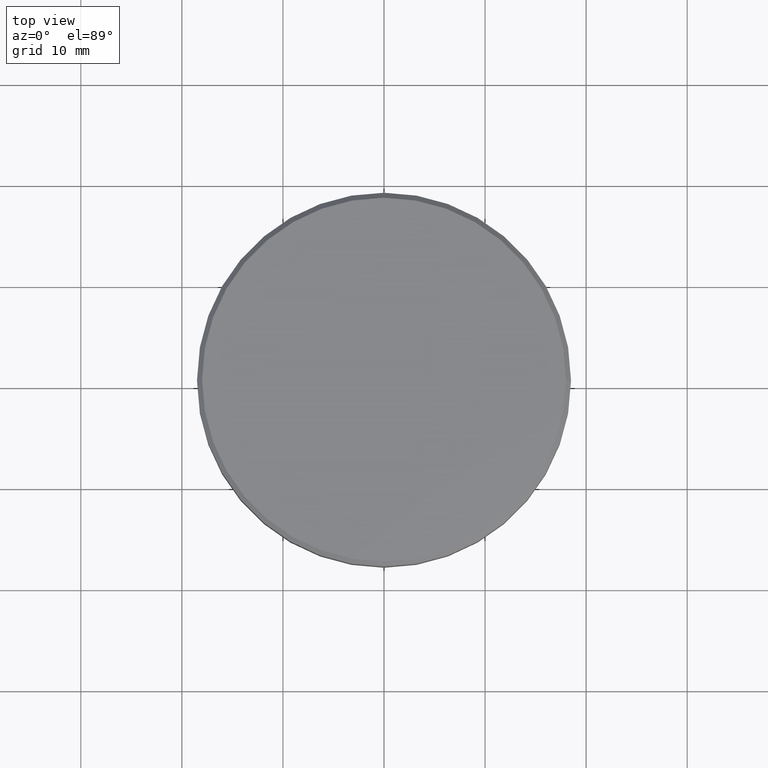
[diagram: clean part render]
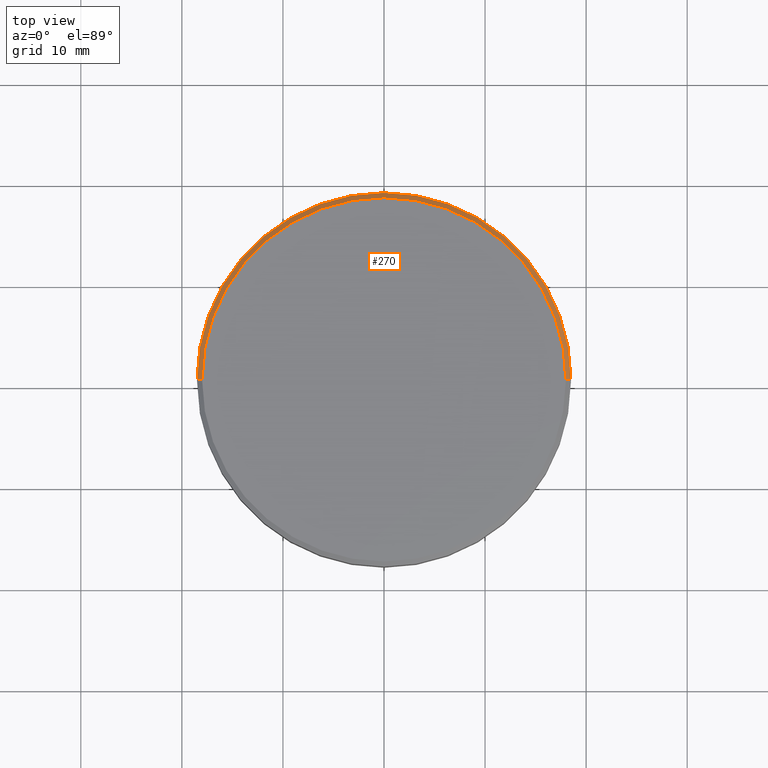
[diagram: same view with one face highlighted and labeled with its STEP entity id]
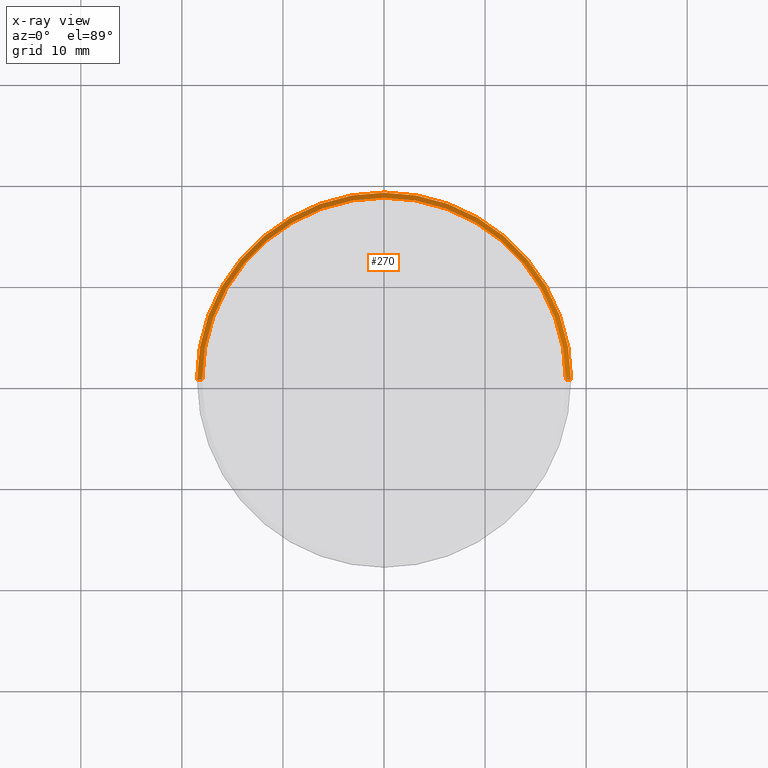
[diagram: x-ray of the same camera — body ghosted, the highlighted face saturated]
A machine part, top view. The second image highlights one B-rep face of the part: STEP entity #270.
The next image is the same camera in x-ray: the body ghosted, the highlighted face saturated — about 0% of this face is hidden behind the body in this view.
In plain terms, the highlighted conical surface has half-angle 45 deg.
Its self-contained STEP definition (entity closure, byte-faithful):
#1 = CARTESIAN_POINT ( 'NONE',  ( 0.000000000000000000, 0.000000000000000000, -0.5000000000000004441 ) ) ;
#7 = ORIENTED_EDGE ( 'NONE', *, *, #215, .F. ) ;
#9 = AXIS2_PLACEMENT_3D ( 'NONE', #273, #406, #307 ) ;
#13 = DIRECTION ( 'NONE',  ( -0.7071067811865451302, 0.000000000000000000, -0.7071067811865500152 ) ) ;
#27 = CARTESIAN_POINT ( 'NONE',  ( 18.00000000000000355, 2.204364238465235822E-15, 0.000000000000000000 ) ) ;
#42 = CONICAL_SURFACE ( 'NONE', #9, 18.00000000000000355, 0.7853981633974447263 ) ;
#62 = CARTESIAN_POINT ( 'NONE',  ( 18.50000000000000000, 0.000000000000000000, -0.5000000000000004441 ) ) ;
#89 = DIRECTION ( 'NONE',  ( 1.000000000000000000, 0.000000000000000000, 0.000000000000000000 ) ) ;
#101 = CARTESIAN_POINT ( 'NONE',  ( 0.000000000000000000, 0.000000000000000000, 0.000000000000000000 ) ) ;
#106 = DIRECTION ( 'NONE',  ( 1.000000000000000000, 0.000000000000000000, 0.000000000000000000 ) ) ;
#111 = CARTESIAN_POINT ( 'NONE',  ( -18.50000000000000000, 2.265596578422603396E-15, -0.5000000000000004441 ) ) ;
#124 = EDGE_CURVE ( 'NONE', #247, #133, #376, .T. ) ;
#130 = CARTESIAN_POINT ( 'NONE',  ( -18.00000000000000355, 0.000000000000000000, 0.000000000000000000 ) ) ;
#133 = VERTEX_POINT ( 'NONE', #62 ) ;
#135 = DIRECTION ( 'NONE',  ( 0.7071067811865451302, 8.659560562354903276E-17, -0.7071067811865500152 ) ) ;
#186 = AXIS2_PLACEMENT_3D ( 'NONE', #1, #350, #89 ) ;
#194 = CARTESIAN_POINT ( 'NONE',  ( -18.00000000000000355, 0.000000000000000000, 0.000000000000000000 ) ) ;
#206 = LINE ( 'NONE', #27, #263 ) ;
#215 = EDGE_CURVE ( 'NONE', #234, #247, #287, .T. ) ;
#233 = CARTESIAN_POINT ( 'NONE',  ( 18.00000000000000355, 2.234980408443919609E-15, 0.000000000000000000 ) ) ;
#234 = VERTEX_POINT ( 'NONE', #130 ) ;
#239 = FACE_OUTER_BOUND ( 'NONE', #329, .T. ) ;
#247 = VERTEX_POINT ( 'NONE', #111 ) ;
#251 = VERTEX_POINT ( 'NONE', #233 ) ;
#263 = VECTOR ( 'NONE', #135, 1000.000000000000114 ) ;
#269 = DIRECTION ( 'NONE',  ( -0.000000000000000000, -0.000000000000000000, 1.000000000000000000 ) ) ;
#270 = ADVANCED_FACE ( 'NONE', ( #239 ), #42, .T. ) ;
#273 = CARTESIAN_POINT ( 'NONE',  ( 0.000000000000000000, 0.000000000000000000, 0.000000000000000000 ) ) ;
#284 = EDGE_CURVE ( 'NONE', #251, #133, #206, .T. ) ;
#287 = LINE ( 'NONE', #194, #318 ) ;
#292 = EDGE_CURVE ( 'NONE', #251, #234, #384, .T. ) ;
#302 = ORIENTED_EDGE ( 'NONE', *, *, #124, .F. ) ;
#304 = AXIS2_PLACEMENT_3D ( 'NONE', #101, #269, #106 ) ;
#307 = DIRECTION ( 'NONE',  ( -1.000000000000000000, 0.000000000000000000, 0.000000000000000000 ) ) ;
#318 = VECTOR ( 'NONE', #13, 1000.000000000000114 ) ;
#329 = EDGE_LOOP ( 'NONE', ( #334, #355, #302, #7 ) ) ;
#334 = ORIENTED_EDGE ( 'NONE', *, *, #292, .F. ) ;
#350 = DIRECTION ( 'NONE',  ( 0.000000000000000000, 0.000000000000000000, -1.000000000000000000 ) ) ;
#355 = ORIENTED_EDGE ( 'NONE', *, *, #284, .T. ) ;
#376 = CIRCLE ( 'NONE', #186, 18.50000000000000000 ) ;
#384 = CIRCLE ( 'NONE', #304, 18.00000000000000355 ) ;
#406 = DIRECTION ( 'NONE',  ( 0.000000000000000000, 0.000000000000000000, -1.000000000000000000 ) ) ;